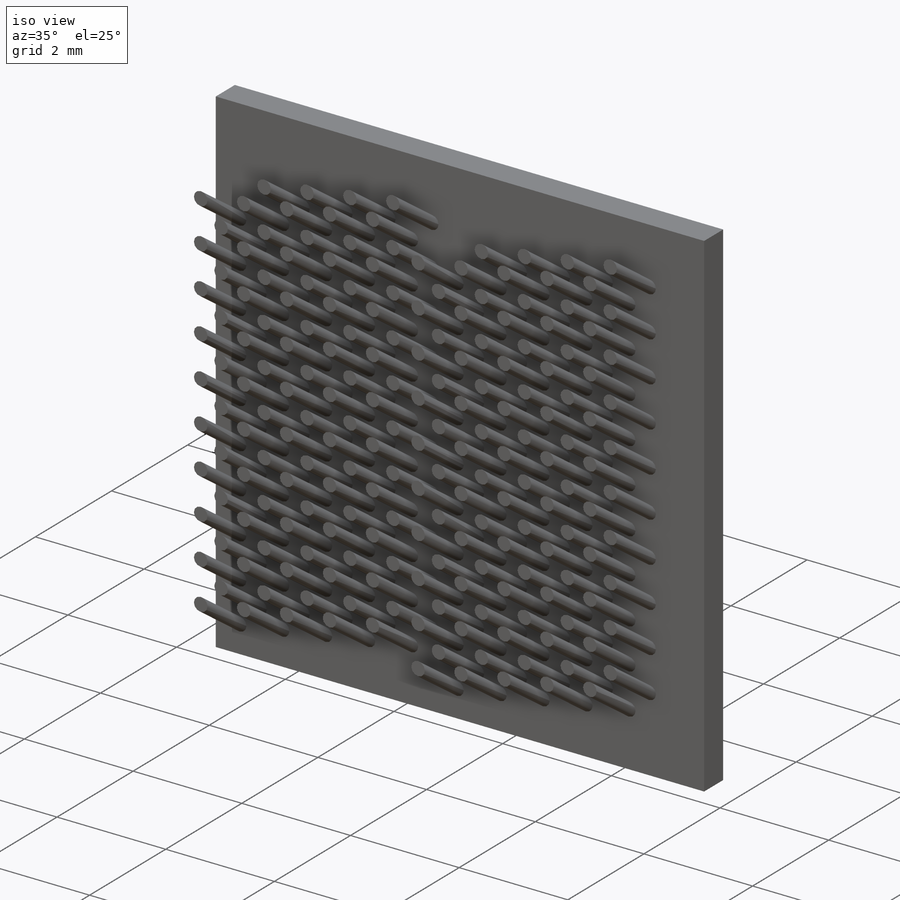
[diagram: iso view]
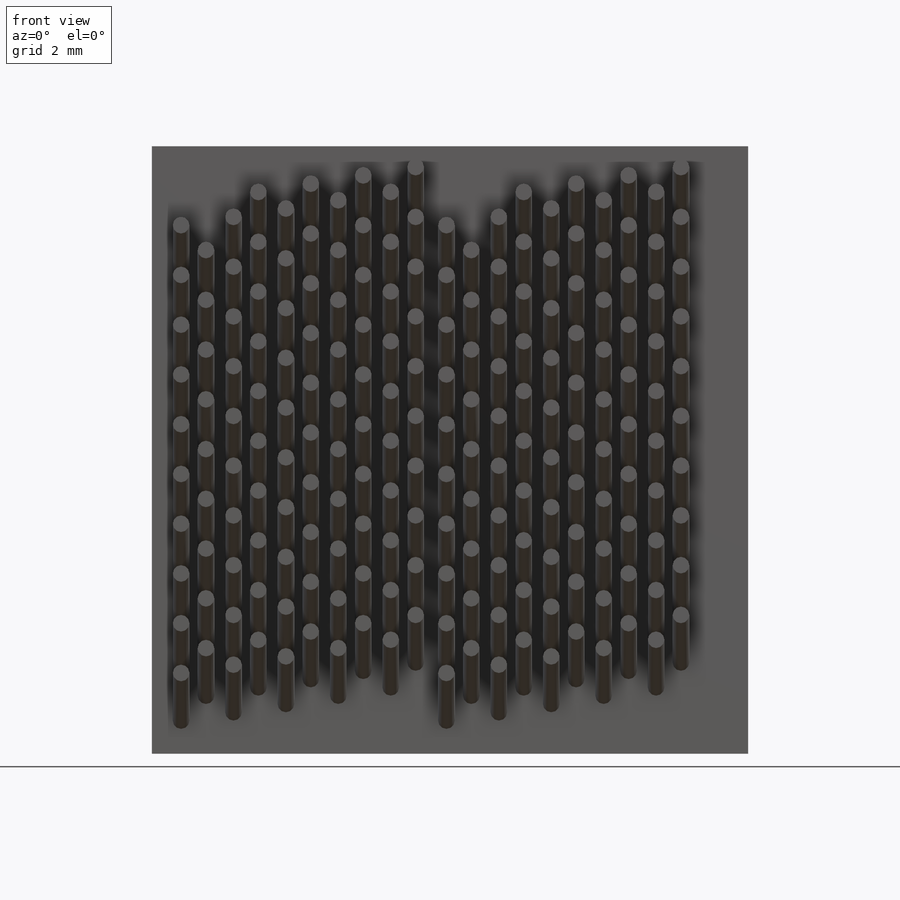
[diagram: front view]
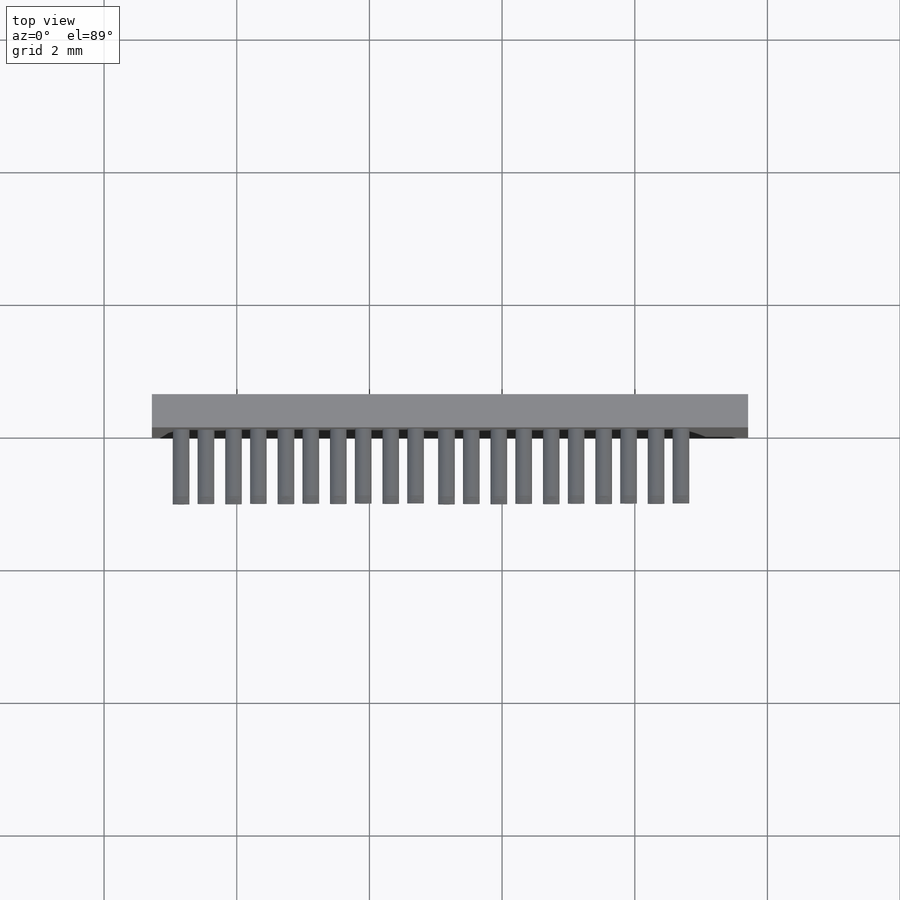
[diagram: top view]
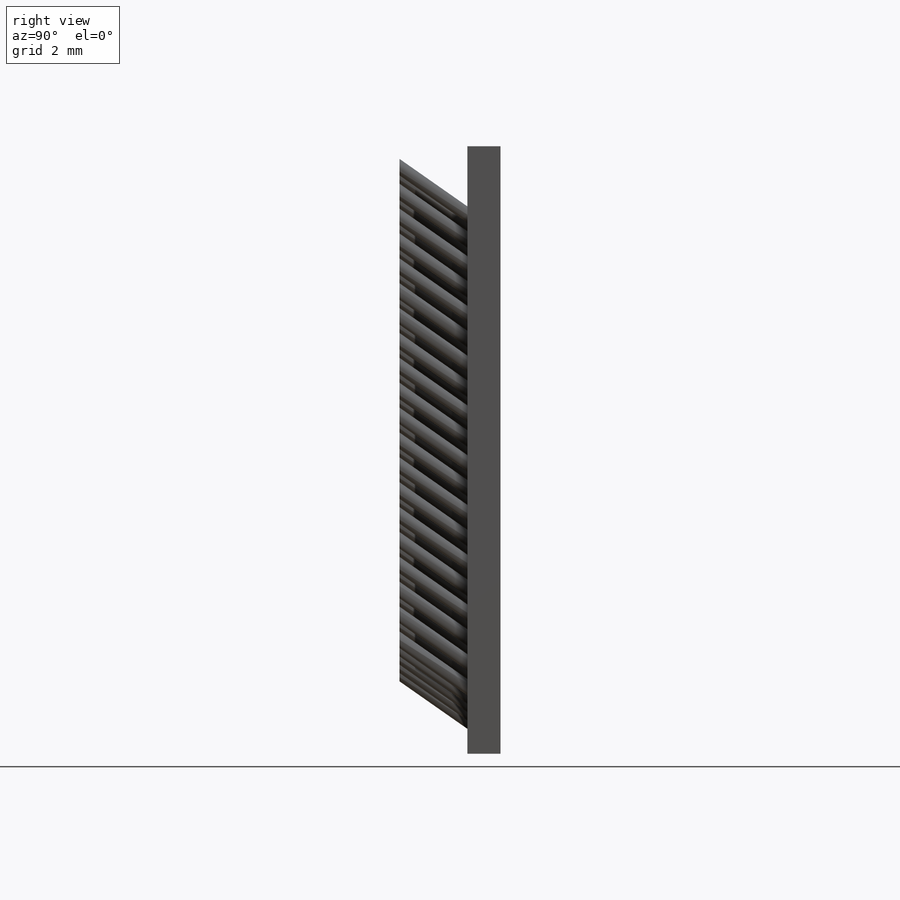
[diagram: right view]
SOLIDWORKS PART (.sldprt)
format: sldprt  version: not decoded by parser v0  size: 671,744 bytes
history: native  units: mm
features: sketch x5, extrude x2, material x1, pattern_linear x1 (+13 scaffold rows collapsed)
feature tree (22):
  scaffold x13  (default folders/planes/origin — collapsed)
  material  "Material <not specified>"
  sketch  "Sketch1"  dims[D1=0.25mm]
  sketch  "Sketch2"  dims[c1.D1=1.0mm c2.D1=145.0deg]
  extrude  "Extrude1"  Depth=1.25mm
  sketch  "Sketch3"
  sketch  "Sketch4"
  pattern_linear  "LPattern2"  Count1=2 Count2=1 Spacing1=4mm Spacing2=2mm
  sketch  "Sketch5"
  extrude  "Extrude2"  Depth=0.5mm
decode coverage: 5 of 8 modeling features carry decoded parameters
note: suppression state not decoded; provenance and decode notes live in map.json
